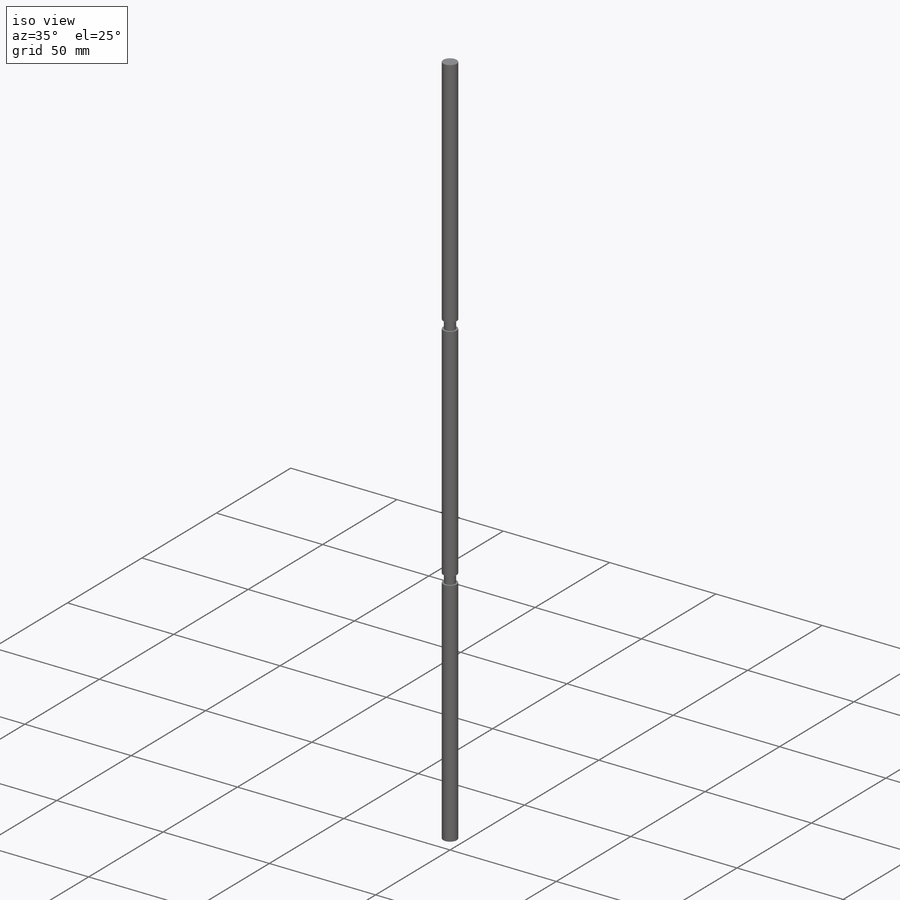
[diagram: iso view]
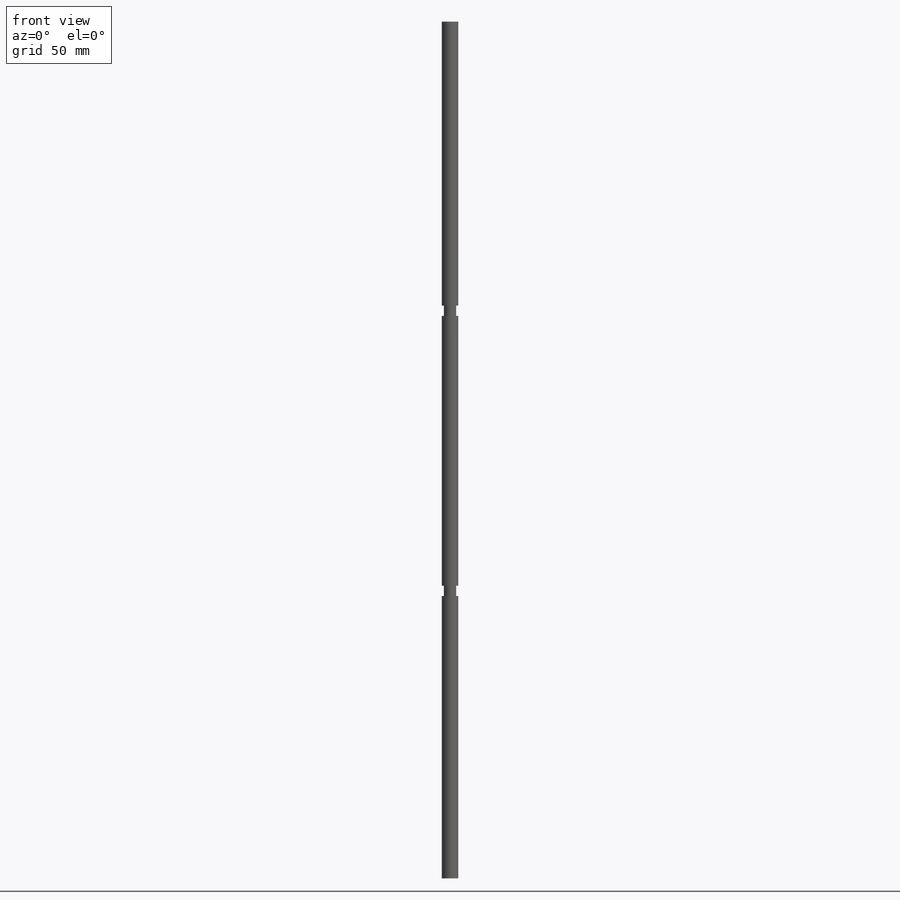
[diagram: front view]
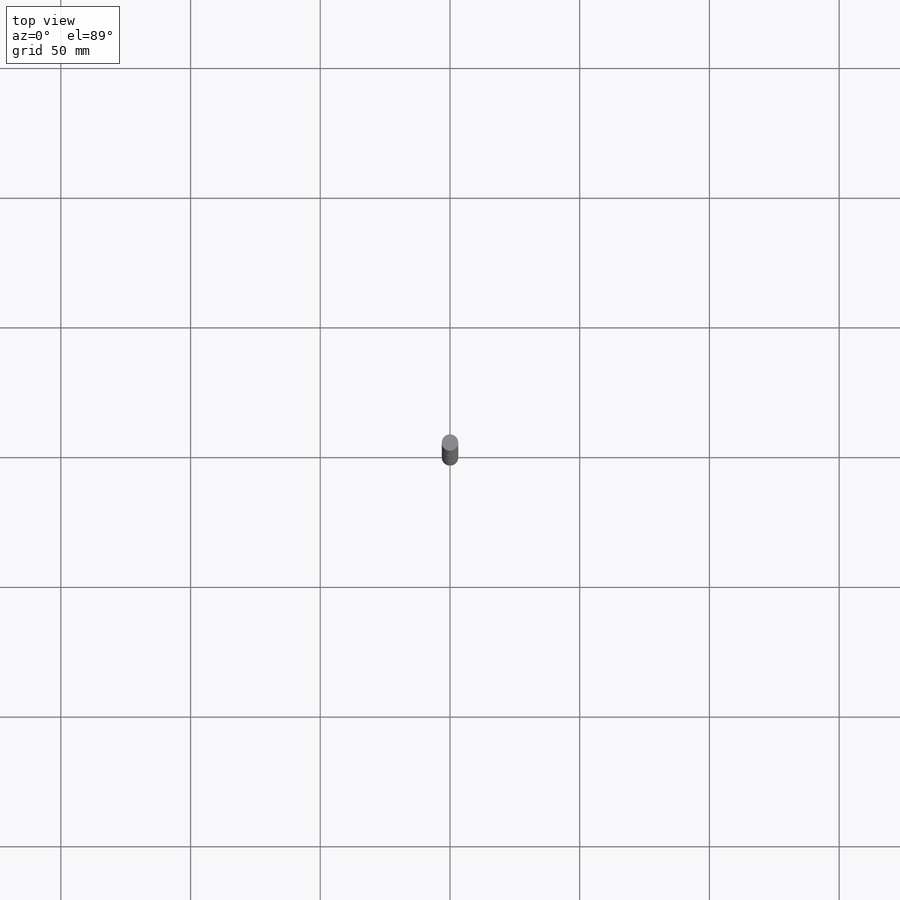
[diagram: top view]
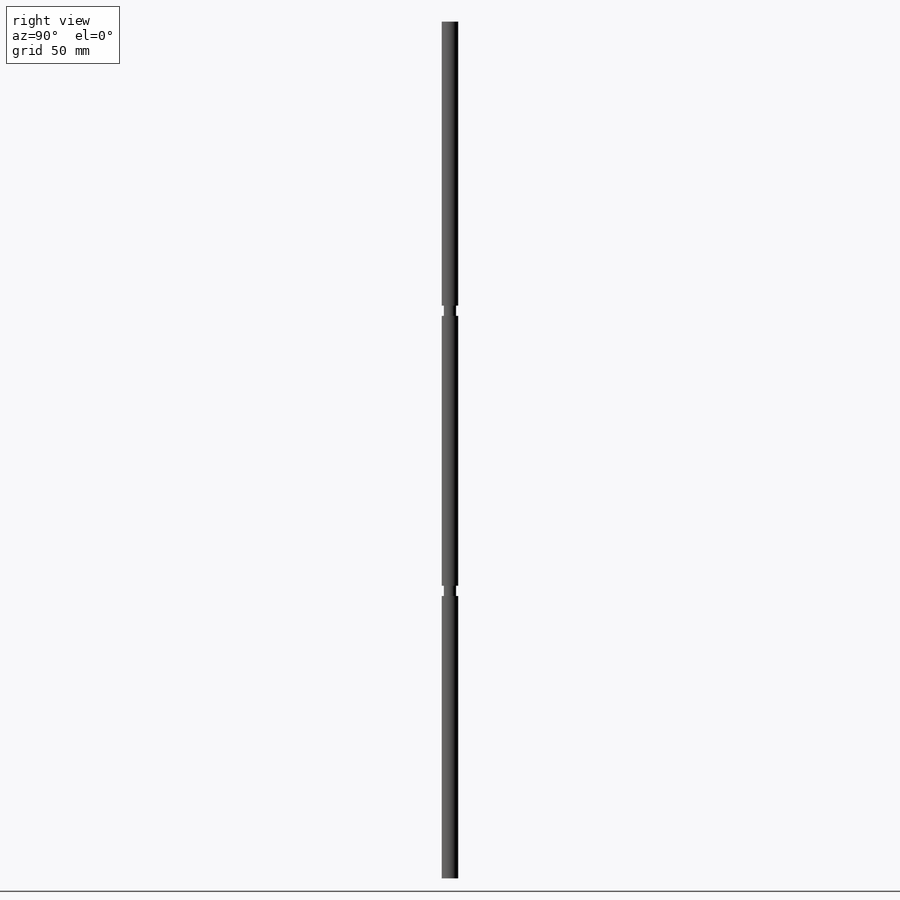
[diagram: right view]
SOLIDWORKS PART (.sldprt)
format: sldprt  version: not decoded by parser v0  size: 154,112 bytes
history: native  units: mm
features: sketch x2, material x1, extrude x1, plane x1, cut_extrude x1, pattern_linear x1 + 1 further entry (+12 scaffold rows collapsed)
feature tree (20):
  scaffold x12  (default folders/planes/origin — collapsed)
  material  "AISI 304"
  "Origin"  ID=-1
  sketch  "Sketch1"  dims[D1=6.35mm]
  extrude  "Boss-Extrude1"  Depth=330.2mm
  plane  "Plane1"  Offset=108.83011mm
  sketch  "Sketch2"  dims[D1=4.7625mm D2=6.985mm]
  cut_extrude  "Cut-Extrude1"  Depth=3.96875mm
  pattern_linear  "LPattern1"  Count1=2 Count2=1 Spacing1=107.95mm Spacing2=2.54mm
decode coverage: 5 of 5 modeling features carry decoded parameters; 1 rows unclassified (native names shown)
note: suppression state not decoded; provenance and decode notes live in map.json
